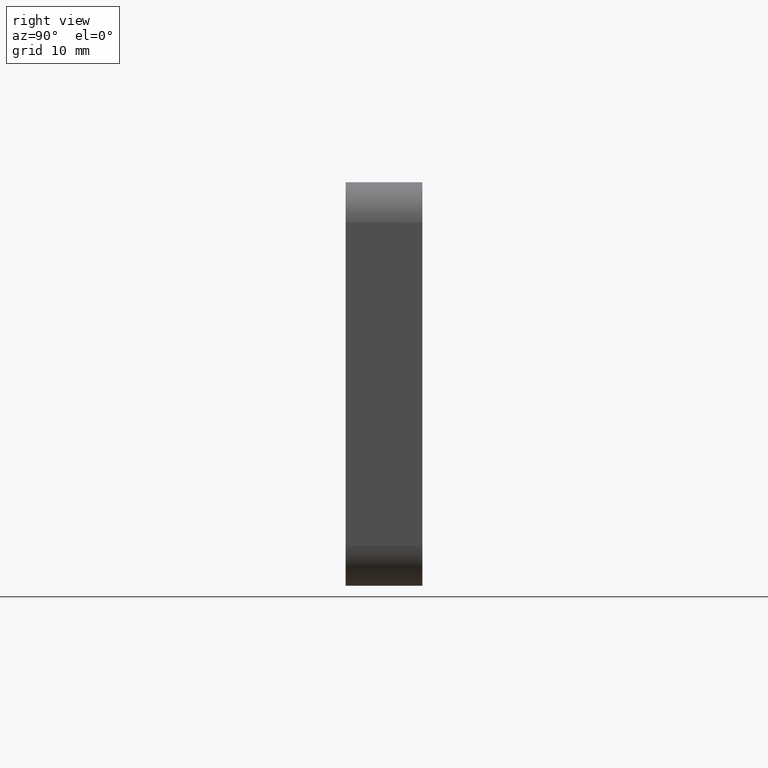
[diagram: clean part render]
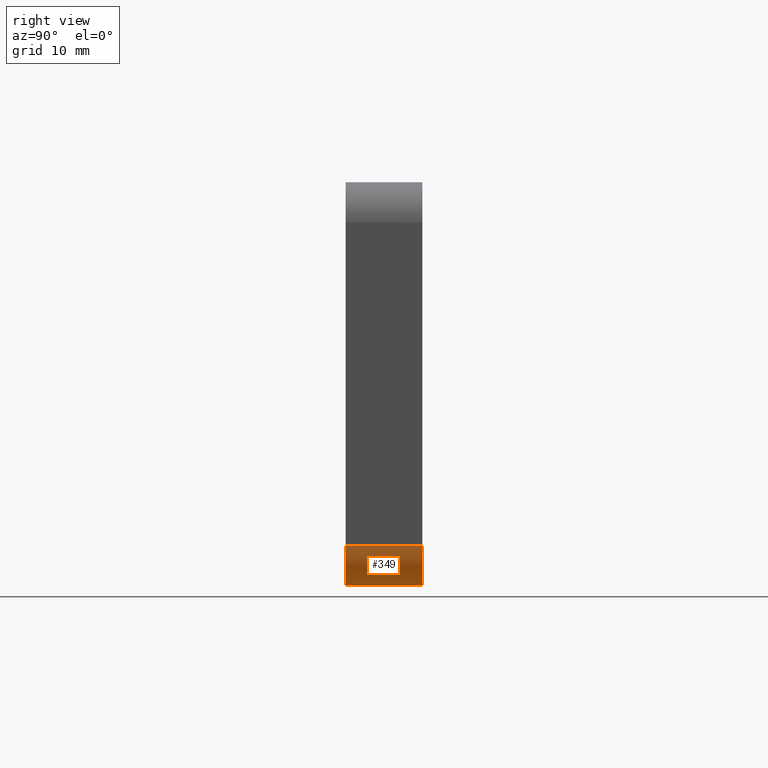
[diagram: same view with one face highlighted and labeled with its STEP entity id]
A machine part, right view. The second image highlights one B-rep face of the part: STEP entity #349.
In plain terms, the highlighted cylindrical surface (partial cylindrical patch) has radius 5 mm, axis along (0, 1, 0).
Its self-contained STEP definition (entity closure, byte-faithful):
#3 = CARTESIAN_POINT ( 'NONE',  ( 32.50000000000002800, 0.0000000000000000000, -25.00000000000000000 ) ) ;
#27 = ORIENTED_EDGE ( 'NONE', *, *, #371, .F. ) ;
#82 = AXIS2_PLACEMENT_3D ( 'NONE', #269, #965, #756 ) ;
#116 = EDGE_LOOP ( 'NONE', ( #165, #27, #621, #1174 ) ) ;
#141 = FACE_OUTER_BOUND ( 'NONE', #116, .T. ) ;
#165 = ORIENTED_EDGE ( 'NONE', *, *, #734, .F. ) ;
#247 = DIRECTION ( 'NONE',  ( 0.0000000000000000000, 0.0000000000000000000, 1.000000000000000000 ) ) ;
#269 = CARTESIAN_POINT ( 'NONE',  ( 32.50000000000002800, -9.500000000000000000, -20.00000000000000000 ) ) ;
#276 = LINE ( 'NONE', #287, #1166 ) ;
#287 = CARTESIAN_POINT ( 'NONE',  ( 32.50000000000002800, -9.500000000000000000, -25.00000000000000000 ) ) ;
#327 = AXIS2_PLACEMENT_3D ( 'NONE', #1052, #681, #860 ) ;
#349 = ADVANCED_FACE ( 'NONE', ( #141 ), #1001, .T. ) ;
#371 = EDGE_CURVE ( 'NONE', #507, #388, #785, .T. ) ;
#388 = VERTEX_POINT ( 'NONE', #765 ) ;
#391 = CARTESIAN_POINT ( 'NONE',  ( 37.50000000000002100, -9.500000000000000000, -20.00000000000000000 ) ) ;
#458 = DIRECTION ( 'NONE',  ( 0.0000000000000000000, 1.000000000000000000, 0.0000000000000000000 ) ) ;
#500 = CIRCLE ( 'NONE', #327, 4.999999999999995600 ) ;
#507 = VERTEX_POINT ( 'NONE', #1101 ) ;
#562 = VERTEX_POINT ( 'NONE', #1011 ) ;
#565 = CARTESIAN_POINT ( 'NONE',  ( 32.50000000000002800, -9.500000000000000000, -20.00000000000000000 ) ) ;
#612 = VECTOR ( 'NONE', #1075, 1000.000000000000000 ) ;
#621 = ORIENTED_EDGE ( 'NONE', *, *, #626, .T. ) ;
#626 = EDGE_CURVE ( 'NONE', #507, #562, #801, .T. ) ;
#681 = DIRECTION ( 'NONE',  ( 0.0000000000000000000, 1.000000000000000000, -0.0000000000000000000 ) ) ;
#734 = EDGE_CURVE ( 'NONE', #388, #1145, #500, .T. ) ;
#756 = DIRECTION ( 'NONE',  ( 0.0000000000000000000, 0.0000000000000000000, 1.000000000000000000 ) ) ;
#765 = CARTESIAN_POINT ( 'NONE',  ( 37.50000000000002100, 0.0000000000000000000, -20.00000000000000000 ) ) ;
#785 = LINE ( 'NONE', #391, #612 ) ;
#801 = CIRCLE ( 'NONE', #82, 4.999999999999995600 ) ;
#818 = AXIS2_PLACEMENT_3D ( 'NONE', #565, #458, #247 ) ;
#860 = DIRECTION ( 'NONE',  ( 0.0000000000000000000, 0.0000000000000000000, 1.000000000000000000 ) ) ;
#965 = DIRECTION ( 'NONE',  ( 0.0000000000000000000, 1.000000000000000000, -0.0000000000000000000 ) ) ;
#1001 = CYLINDRICAL_SURFACE ( 'NONE', #818, 4.999999999999995600 ) ;
#1011 = CARTESIAN_POINT ( 'NONE',  ( 32.50000000000002800, -9.500000000000000000, -25.00000000000000000 ) ) ;
#1052 = CARTESIAN_POINT ( 'NONE',  ( 32.50000000000002800, 0.0000000000000000000, -20.00000000000000000 ) ) ;
#1072 = DIRECTION ( 'NONE',  ( 0.0000000000000000000, 1.000000000000000000, 0.0000000000000000000 ) ) ;
#1075 = DIRECTION ( 'NONE',  ( 0.0000000000000000000, 1.000000000000000000, 0.0000000000000000000 ) ) ;
#1093 = EDGE_CURVE ( 'NONE', #562, #1145, #276, .T. ) ;
#1101 = CARTESIAN_POINT ( 'NONE',  ( 37.50000000000002100, -9.500000000000000000, -20.00000000000000000 ) ) ;
#1145 = VERTEX_POINT ( 'NONE', #3 ) ;
#1166 = VECTOR ( 'NONE', #1072, 1000.000000000000000 ) ;
#1174 = ORIENTED_EDGE ( 'NONE', *, *, #1093, .T. ) ;